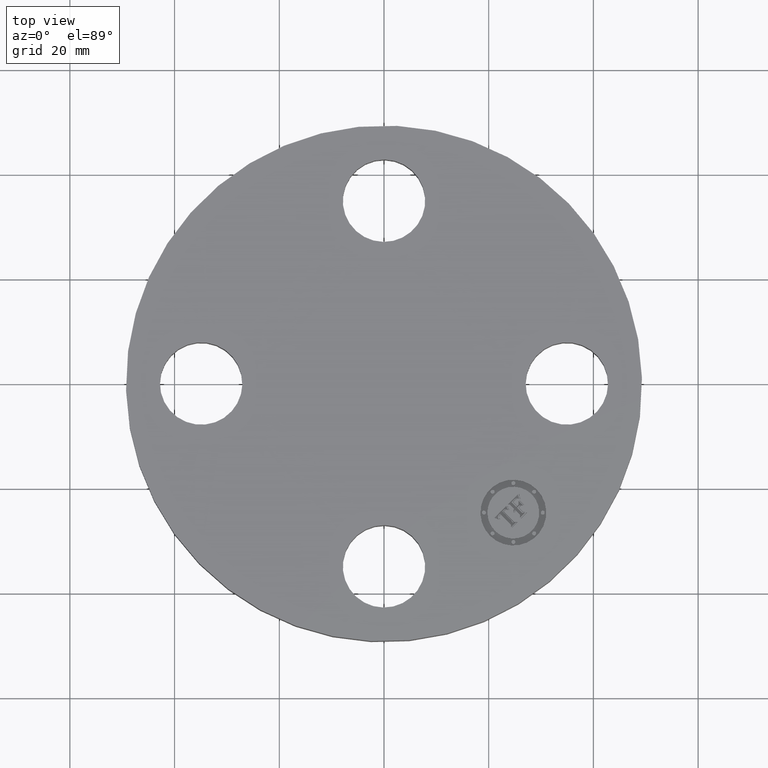
[diagram: clean part render]
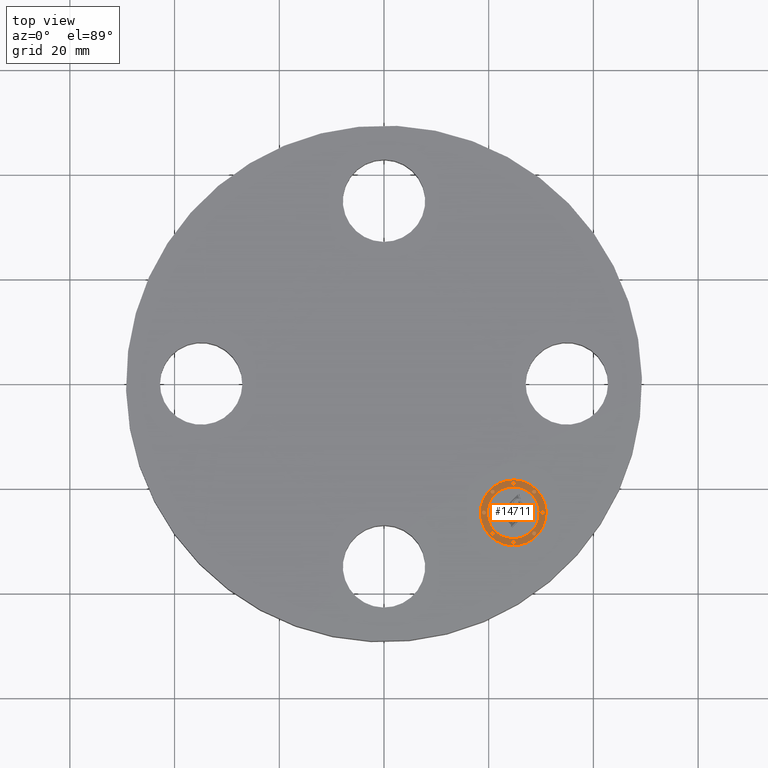
[diagram: same view with one face highlighted and labeled with its STEP entity id]
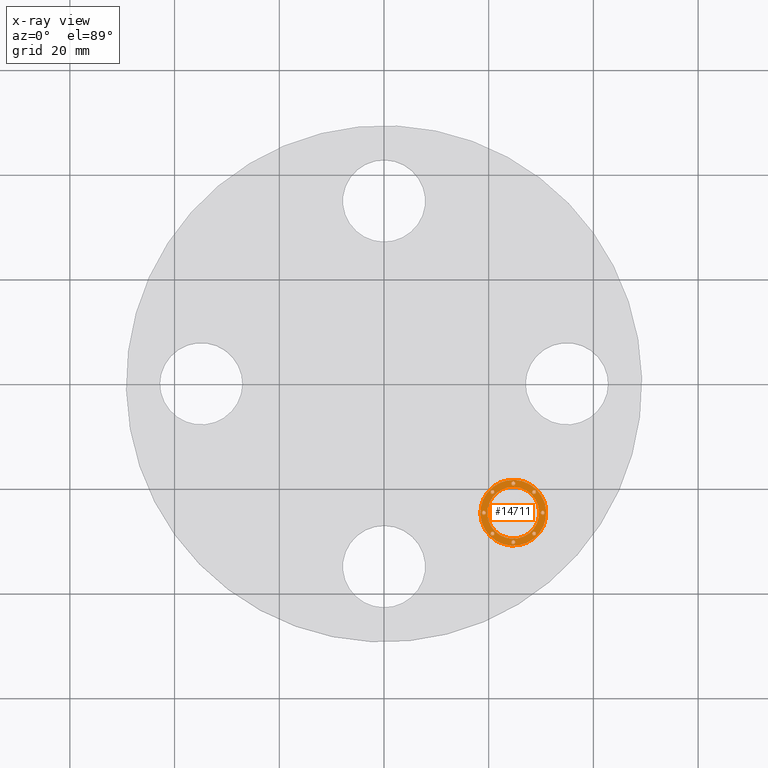
[diagram: x-ray of the same camera — body ghosted, the highlighted face saturated]
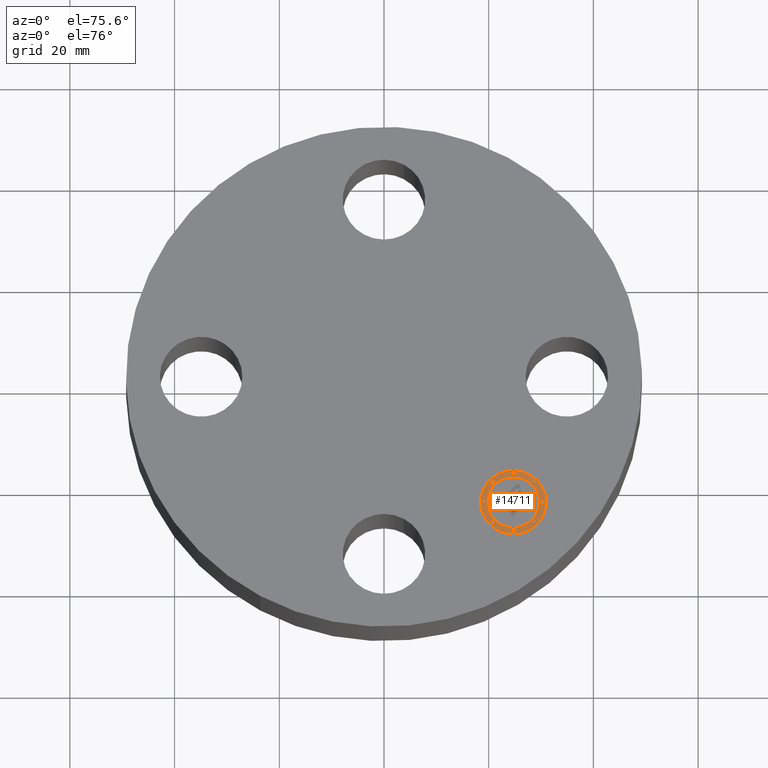
[diagram: same view with one face highlighted and labeled with its STEP entity id]
A machine part, top view. The second image highlights one B-rep face of the part: STEP entity #14711.
The next image is the same camera in x-ray: the body ghosted, the highlighted face saturated — about 0% of this face is hidden behind the body in this view.
A second angle (auxiliary view) of the same face is appended — the face is thin or edge-on in the first view.
In plain terms, the highlighted planar face has unit normal (0, -0, 1).
Its self-contained STEP definition (entity closure, byte-faithful):
#3362=AXIS2_PLACEMENT_3D('Plane Axis2P3D',#3359,#3360,#3361) ;
#14533=AXIS2_PLACEMENT_3D('Circle Axis2P3D',#14531,#14532,$) ;
#14542=AXIS2_PLACEMENT_3D('Circle Axis2P3D',#14540,#14541,$) ;
#14551=AXIS2_PLACEMENT_3D('Circle Axis2P3D',#14549,#14550,$) ;
#14560=AXIS2_PLACEMENT_3D('Circle Axis2P3D',#14558,#14559,$) ;
#14569=AXIS2_PLACEMENT_3D('Circle Axis2P3D',#14567,#14568,$) ;
#14578=AXIS2_PLACEMENT_3D('Circle Axis2P3D',#14576,#14577,$) ;
#14587=AXIS2_PLACEMENT_3D('Circle Axis2P3D',#14585,#14586,$) ;
#14596=AXIS2_PLACEMENT_3D('Circle Axis2P3D',#14594,#14595,$) ;
#14605=AXIS2_PLACEMENT_3D('Circle Axis2P3D',#14603,#14604,$) ;
#14614=AXIS2_PLACEMENT_3D('Circle Axis2P3D',#14612,#14613,$) ;
#14623=AXIS2_PLACEMENT_3D('Circle Axis2P3D',#14621,#14622,$) ;
#14632=AXIS2_PLACEMENT_3D('Circle Axis2P3D',#14630,#14631,$) ;
#14641=AXIS2_PLACEMENT_3D('Circle Axis2P3D',#14639,#14640,$) ;
#14650=AXIS2_PLACEMENT_3D('Circle Axis2P3D',#14648,#14649,$) ;
#14659=AXIS2_PLACEMENT_3D('Circle Axis2P3D',#14657,#14658,$) ;
#14668=AXIS2_PLACEMENT_3D('Circle Axis2P3D',#14666,#14667,$) ;
#14677=AXIS2_PLACEMENT_3D('Circle Axis2P3D',#14675,#14676,$) ;
#14686=AXIS2_PLACEMENT_3D('Circle Axis2P3D',#14684,#14685,$) ;
#14695=AXIS2_PLACEMENT_3D('Circle Axis2P3D',#14693,#14694,$) ;
#14704=AXIS2_PLACEMENT_3D('Circle Axis2P3D',#14702,#14703,$) ;
#3359=CARTESIAN_POINT('Axis2P3D Location',(0.,0.,0.425000000002)) ;
#14531=CARTESIAN_POINT('Axis2P3D Location',(0.972271824135,-0.972271824135,0.425000000002)) ;
#14535=CARTESIAN_POINT('Vertex',(1.14728075248,-0.797262895791,0.425000000002)) ;
#14537=CARTESIAN_POINT('Vertex',(0.797262895791,-1.14728075248,0.425000000002)) ;
#14540=CARTESIAN_POINT('Axis2P3D Location',(0.972271824135,-0.972271824135,0.425000000002)) ;
#14549=CARTESIAN_POINT('Axis2P3D Location',(0.972271824135,-0.972271824135,0.425000000002)) ;
#14553=CARTESIAN_POINT('Vertex',(0.834386001803,-1.11015764647,0.425000000002)) ;
#14555=CARTESIAN_POINT('Vertex',(1.11015764647,-0.834386001803,0.425000000002)) ;
#14558=CARTESIAN_POINT('Axis2P3D Location',(0.972271824135,-0.972271824135,0.425000000002)) ;
#14567=CARTESIAN_POINT('Axis2P3D Location',(0.815824448797,-0.815824448797,0.425000000002)) ;
#14571=CARTESIAN_POINT('Vertex',(0.805217847079,-0.826431050515,0.425000000002)) ;
#14573=CARTESIAN_POINT('Vertex',(0.826431050515,-0.805217847079,0.425000000002)) ;
#14576=CARTESIAN_POINT('Axis2P3D Location',(0.815824448797,-0.815824448797,0.425000000002)) ;
#14585=CARTESIAN_POINT('Axis2P3D Location',(1.12871919947,-0.815824448797,0.425000000002)) ;
#14589=CARTESIAN_POINT('Vertex',(1.11811259776,-0.826431050515,0.425000000002)) ;
#14591=CARTESIAN_POINT('Vertex',(1.13932580119,-0.805217847079,0.425000000002)) ;
#14594=CARTESIAN_POINT('Axis2P3D Location',(1.12871919947,-0.815824448797,0.425000000002)) ;
#14603=CARTESIAN_POINT('Axis2P3D Location',(0.972271824135,-0.751021824134,0.425000000002)) ;
#14607=CARTESIAN_POINT('Vertex',(0.961665222418,-0.761628425852,0.425000000002)) ;
#14609=CARTESIAN_POINT('Vertex',(0.982878425853,-0.740415222417,0.425000000002)) ;
#14612=CARTESIAN_POINT('Axis2P3D Location',(0.972271824135,-0.751021824134,0.425000000002)) ;
#14621=CARTESIAN_POINT('Axis2P3D Location',(1.12871919947,-1.12871919947,0.425000000002)) ;
#14625=CARTESIAN_POINT('Vertex',(1.11811259776,-1.13932580119,0.425000000002)) ;
#14627=CARTESIAN_POINT('Vertex',(1.13932580119,-1.11811259776,0.425000000002)) ;
#14630=CARTESIAN_POINT('Axis2P3D Location',(1.12871919947,-1.12871919947,0.425000000002)) ;
#14639=CARTESIAN_POINT('Axis2P3D Location',(1.19352182414,-0.972271824135,0.425000000002)) ;
#14643=CARTESIAN_POINT('Vertex',(1.18291522242,-0.982878425853,0.425000000002)) ;
#14645=CARTESIAN_POINT('Vertex',(1.20412842585,-0.961665222418,0.425000000002)) ;
#14648=CARTESIAN_POINT('Axis2P3D Location',(1.19352182414,-0.972271824135,0.425000000002)) ;
#14657=CARTESIAN_POINT('Axis2P3D Location',(0.815824448797,-1.12871919947,0.425000000002)) ;
#14661=CARTESIAN_POINT('Vertex',(0.826431050515,-1.11811259776,0.425000000002)) ;
#14663=CARTESIAN_POINT('Vertex',(0.805217847079,-1.13932580119,0.425000000002)) ;
#14666=CARTESIAN_POINT('Axis2P3D Location',(0.815824448797,-1.12871919947,0.425000000002)) ;
#14675=CARTESIAN_POINT('Axis2P3D Location',(0.751021824134,-0.972271824135,0.425000000002)) ;
#14679=CARTESIAN_POINT('Vertex',(0.761628425852,-0.961665222418,0.425000000002)) ;
#14681=CARTESIAN_POINT('Vertex',(0.740415222417,-0.982878425853,0.425000000002)) ;
#14684=CARTESIAN_POINT('Axis2P3D Location',(0.751021824134,-0.972271824135,0.425000000002)) ;
#14693=CARTESIAN_POINT('Axis2P3D Location',(0.972271824135,-1.19352182414,0.425000000002)) ;
#14697=CARTESIAN_POINT('Vertex',(0.982878425853,-1.18291522242,0.425000000002)) ;
#14699=CARTESIAN_POINT('Vertex',(0.961665222418,-1.20412842585,0.425000000002)) ;
#14702=CARTESIAN_POINT('Axis2P3D Location',(0.972271824135,-1.19352182414,0.425000000002)) ;
#3360=DIRECTION('Axis2P3D Direction',(0.,-0.,0.0393700787402)) ;
#3361=DIRECTION('Axis2P3D XDirection',(0.027838849653,0.027838849653,0.)) ;
#14532=DIRECTION('Axis2P3D Direction',(0.,-0.,0.0393700787402)) ;
#14541=DIRECTION('Axis2P3D Direction',(0.,-0.,0.0393700787402)) ;
#14550=DIRECTION('Axis2P3D Direction',(0.,-0.,0.0393700787402)) ;
#14559=DIRECTION('Axis2P3D Direction',(0.,-0.,0.0393700787402)) ;
#14568=DIRECTION('Axis2P3D Direction',(0.,-0.,0.0393700787402)) ;
#14577=DIRECTION('Axis2P3D Direction',(0.,-0.,0.0393700787402)) ;
#14586=DIRECTION('Axis2P3D Direction',(0.,-0.,0.0393700787402)) ;
#14595=DIRECTION('Axis2P3D Direction',(0.,-0.,0.0393700787402)) ;
#14604=DIRECTION('Axis2P3D Direction',(0.,-0.,0.0393700787402)) ;
#14613=DIRECTION('Axis2P3D Direction',(0.,-0.,0.0393700787402)) ;
#14622=DIRECTION('Axis2P3D Direction',(0.,-0.,0.0393700787402)) ;
#14631=DIRECTION('Axis2P3D Direction',(0.,-0.,0.0393700787402)) ;
#14640=DIRECTION('Axis2P3D Direction',(0.,-0.,0.0393700787402)) ;
#14649=DIRECTION('Axis2P3D Direction',(0.,-0.,0.0393700787402)) ;
#14658=DIRECTION('Axis2P3D Direction',(0.,-0.,0.0393700787402)) ;
#14667=DIRECTION('Axis2P3D Direction',(0.,-0.,0.0393700787402)) ;
#14676=DIRECTION('Axis2P3D Direction',(0.,-0.,0.0393700787402)) ;
#14685=DIRECTION('Axis2P3D Direction',(0.,-0.,0.0393700787402)) ;
#14694=DIRECTION('Axis2P3D Direction',(0.,-0.,0.0393700787402)) ;
#14703=DIRECTION('Axis2P3D Direction',(0.,-0.,0.0393700787402)) ;
#14546=ORIENTED_EDGE('',*,*,#14539,.T.) ;
#14547=ORIENTED_EDGE('',*,*,#14544,.T.) ;
#14564=ORIENTED_EDGE('',*,*,#14557,.F.) ;
#14565=ORIENTED_EDGE('',*,*,#14562,.F.) ;
#14582=ORIENTED_EDGE('',*,*,#14575,.F.) ;
#14583=ORIENTED_EDGE('',*,*,#14580,.F.) ;
#14600=ORIENTED_EDGE('',*,*,#14593,.F.) ;
#14601=ORIENTED_EDGE('',*,*,#14598,.F.) ;
#14618=ORIENTED_EDGE('',*,*,#14611,.F.) ;
#14619=ORIENTED_EDGE('',*,*,#14616,.F.) ;
#14636=ORIENTED_EDGE('',*,*,#14629,.F.) ;
#14637=ORIENTED_EDGE('',*,*,#14634,.F.) ;
#14654=ORIENTED_EDGE('',*,*,#14647,.F.) ;
#14655=ORIENTED_EDGE('',*,*,#14652,.F.) ;
#14672=ORIENTED_EDGE('',*,*,#14665,.F.) ;
#14673=ORIENTED_EDGE('',*,*,#14670,.F.) ;
#14690=ORIENTED_EDGE('',*,*,#14683,.F.) ;
#14691=ORIENTED_EDGE('',*,*,#14688,.F.) ;
#14708=ORIENTED_EDGE('',*,*,#14701,.F.) ;
#14709=ORIENTED_EDGE('',*,*,#14706,.F.) ;
#14566=FACE_BOUND('',#14563,.T.) ;
#14584=FACE_BOUND('',#14581,.T.) ;
#14602=FACE_BOUND('',#14599,.T.) ;
#14620=FACE_BOUND('',#14617,.T.) ;
#14638=FACE_BOUND('',#14635,.T.) ;
#14656=FACE_BOUND('',#14653,.T.) ;
#14674=FACE_BOUND('',#14671,.T.) ;
#14692=FACE_BOUND('',#14689,.T.) ;
#14710=FACE_BOUND('',#14707,.T.) ;
#14711=ADVANCED_FACE('PartBody',(#14548,#14566,#14584,#14602,#14620,#14638,#14656,#14674,#14692,#14710),#3363,.T.) ;
#14534=CIRCLE('generated circle',#14533,0.247500000001) ;
#14543=CIRCLE('generated circle',#14542,0.247500000001) ;
#14552=CIRCLE('generated circle',#14551,0.195000000001) ;
#14561=CIRCLE('generated circle',#14560,0.195000000001) ;
#14570=CIRCLE('generated circle',#14569,0.0150000000001) ;
#14579=CIRCLE('generated circle',#14578,0.0150000000001) ;
#14588=CIRCLE('generated circle',#14587,0.0150000000001) ;
#14597=CIRCLE('generated circle',#14596,0.0150000000001) ;
#14606=CIRCLE('generated circle',#14605,0.0150000000001) ;
#14615=CIRCLE('generated circle',#14614,0.0150000000001) ;
#14624=CIRCLE('generated circle',#14623,0.0150000000001) ;
#14633=CIRCLE('generated circle',#14632,0.0150000000001) ;
#14642=CIRCLE('generated circle',#14641,0.0150000000001) ;
#14651=CIRCLE('generated circle',#14650,0.0150000000001) ;
#14660=CIRCLE('generated circle',#14659,0.0150000000001) ;
#14669=CIRCLE('generated circle',#14668,0.0150000000001) ;
#14678=CIRCLE('generated circle',#14677,0.0150000000001) ;
#14687=CIRCLE('generated circle',#14686,0.0150000000001) ;
#14696=CIRCLE('generated circle',#14695,0.0150000000001) ;
#14705=CIRCLE('generated circle',#14704,0.0150000000001) ;
#14539=EDGE_CURVE('',#14536,#14538,#14534,.T.) ;
#14544=EDGE_CURVE('',#14538,#14536,#14543,.T.) ;
#14557=EDGE_CURVE('',#14554,#14556,#14552,.T.) ;
#14562=EDGE_CURVE('',#14556,#14554,#14561,.T.) ;
#14575=EDGE_CURVE('',#14572,#14574,#14570,.T.) ;
#14580=EDGE_CURVE('',#14574,#14572,#14579,.T.) ;
#14593=EDGE_CURVE('',#14590,#14592,#14588,.T.) ;
#14598=EDGE_CURVE('',#14592,#14590,#14597,.T.) ;
#14611=EDGE_CURVE('',#14608,#14610,#14606,.T.) ;
#14616=EDGE_CURVE('',#14610,#14608,#14615,.T.) ;
#14629=EDGE_CURVE('',#14626,#14628,#14624,.T.) ;
#14634=EDGE_CURVE('',#14628,#14626,#14633,.T.) ;
#14647=EDGE_CURVE('',#14644,#14646,#14642,.T.) ;
#14652=EDGE_CURVE('',#14646,#14644,#14651,.T.) ;
#14665=EDGE_CURVE('',#14662,#14664,#14660,.T.) ;
#14670=EDGE_CURVE('',#14664,#14662,#14669,.T.) ;
#14683=EDGE_CURVE('',#14680,#14682,#14678,.T.) ;
#14688=EDGE_CURVE('',#14682,#14680,#14687,.T.) ;
#14701=EDGE_CURVE('',#14698,#14700,#14696,.T.) ;
#14706=EDGE_CURVE('',#14700,#14698,#14705,.T.) ;
#14545=EDGE_LOOP('',(#14546,#14547)) ;
#14563=EDGE_LOOP('',(#14564,#14565)) ;
#14581=EDGE_LOOP('',(#14582,#14583)) ;
#14599=EDGE_LOOP('',(#14600,#14601)) ;
#14617=EDGE_LOOP('',(#14618,#14619)) ;
#14635=EDGE_LOOP('',(#14636,#14637)) ;
#14653=EDGE_LOOP('',(#14654,#14655)) ;
#14671=EDGE_LOOP('',(#14672,#14673)) ;
#14689=EDGE_LOOP('',(#14690,#14691)) ;
#14707=EDGE_LOOP('',(#14708,#14709)) ;
#14548=FACE_OUTER_BOUND('',#14545,.T.) ;
#3363=PLANE('',#3362) ;
#14536=VERTEX_POINT('',#14535) ;
#14538=VERTEX_POINT('',#14537) ;
#14554=VERTEX_POINT('',#14553) ;
#14556=VERTEX_POINT('',#14555) ;
#14572=VERTEX_POINT('',#14571) ;
#14574=VERTEX_POINT('',#14573) ;
#14590=VERTEX_POINT('',#14589) ;
#14592=VERTEX_POINT('',#14591) ;
#14608=VERTEX_POINT('',#14607) ;
#14610=VERTEX_POINT('',#14609) ;
#14626=VERTEX_POINT('',#14625) ;
#14628=VERTEX_POINT('',#14627) ;
#14644=VERTEX_POINT('',#14643) ;
#14646=VERTEX_POINT('',#14645) ;
#14662=VERTEX_POINT('',#14661) ;
#14664=VERTEX_POINT('',#14663) ;
#14680=VERTEX_POINT('',#14679) ;
#14682=VERTEX_POINT('',#14681) ;
#14698=VERTEX_POINT('',#14697) ;
#14700=VERTEX_POINT('',#14699) ;